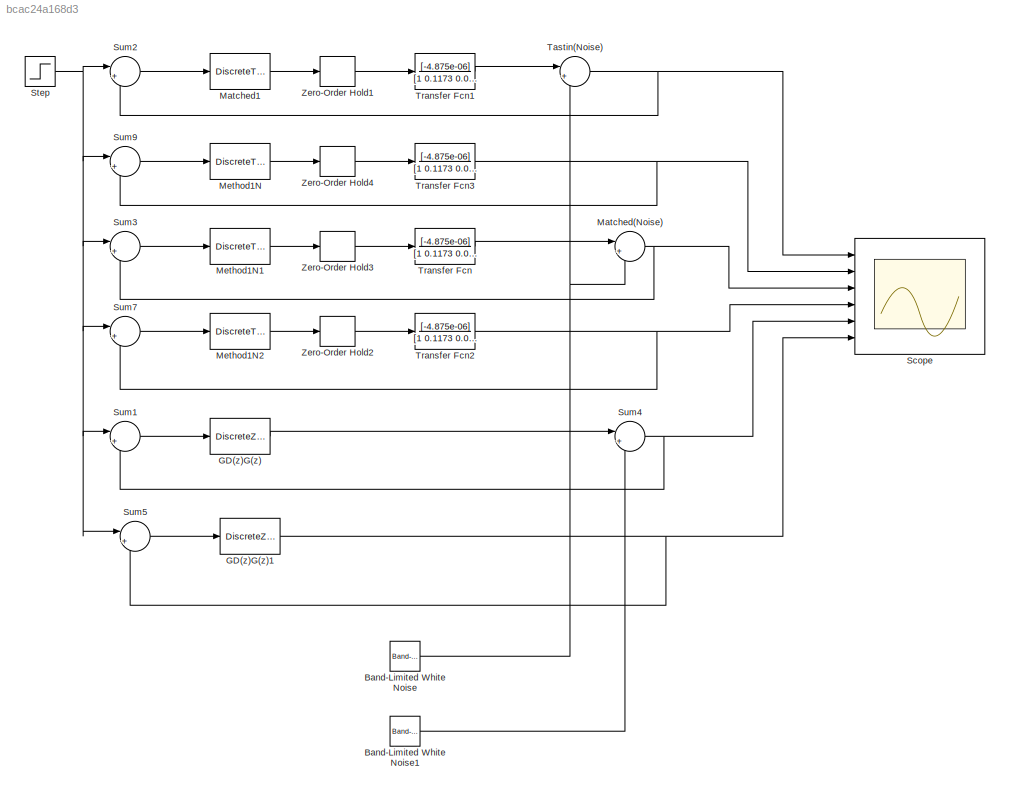
MODEL slx_bcac24a168d3
KIND model
CONFIG AbsTol = auto
CONFIG EnableMultiTasking = off
CONFIG FixedStep = auto
CONFIG MaxStep = auto
CONFIG MinStep = auto
CONFIG RelTol = 1e-3
CONFIG SampleTimeConstraint = Unconstrained
CONFIG Solver = VariableStepAuto
CONFIG SolverName = VariableStepAuto
CONFIG StartTime = 0.0
CONFIG StopTime = 1000
BLOCK [Reference] Band-Limited White Noise  REF=simulink/Sources/Band-Limited
White Noise
  Ports = [0, 1]
  SourceBlock = simulink/Sources/Band-Limited\nWhite Noise
  SourceProductBaseCode = SL
  SourceProductName = Simulink
  SourceType = Band-Limited White Noise.
BLOCK [Reference] Band-Limited White Noise1  REF=simulink/Sources/Band-Limited
White Noise
  Ports = [0, 1]
  SourceBlock = simulink/Sources/Band-Limited\nWhite Noise
  SourceProductBaseCode = SL
  SourceProductName = Simulink
  SourceType = Band-Limited White Noise.
BLOCK [DiscreteZeroPole] GD(z)G(z)
  Gain = 0.0197
  Poles = [0.7788 0.4920 0.3972]
  SampleTime = 10
  Zeros = [-2.8306 -0.1967]
BLOCK [DiscreteZeroPole] GD(z)G(z)1
  Gain = 0.0197
  Poles = [0.7788 0.4920 0.3972]
  SampleTime = 10
  Zeros = [-2.8306 -0.1967]
BLOCK [Sum] Matched(Noise)
  IconShape = round
  InputSameDT = off
  Inputs = |++
  OutDataTypeStr = Inherit: Inherit via internal rule
  Ports = [2, 1]
  SaturateOnIntegerOverflow = off
BLOCK [DiscreteTransferFcn] Matched1
  Denominator = [1 -1]
  InputPortMap = u0
  Numerator = [-7.834 7.826]
  Ports = [1, 1]
  SampleTime = 4
BLOCK [DiscreteTransferFcn] Method1N
  Denominator = [1 -1]
  InputPortMap = u0
  Numerator = [-7.834 7.826]
  Ports = [1, 1]
  SampleTime = 4
BLOCK [DiscreteTransferFcn] Method1N1
  Denominator = [1 -1]
  InputPortMap = u0
  Numerator = [-7.834 7.826]
  Ports = [1, 1]
  SampleTime = 4
BLOCK [DiscreteTransferFcn] Method1N2
  Denominator = [1 -1]
  InputPortMap = u0
  Numerator = [-7.834 7.826]
  Ports = [1, 1]
  SampleTime = 4
BLOCK [Scope] Scope
  NumInputPorts = 6
  Ports = [6]
  ScopeSpecificationString = Simulink.scopes.TimeScopeBlockCfg('CurrentConfiguration', extmgr.ConfigurationSet(extmgr.Configuration('Core','General UI',true),extmgr.Configuration('Core','Source UI',true),extmgr.Configuration('Sources','WiredSimulink',true),extmgr.Configuration('Visuals','Time Domain',true,'SerializedDisplays',{struct('MinYLimReal','-0.20429','MaxYLimReal','1.41266','YLabelReal','','MinYLimMag','0.00000','MaxY...<+1695ch>
BLOCK [Step] Step
  SampleTime = 0
BLOCK [Sum] Sum1
  IconShape = round
  InputSameDT = off
  Inputs = |+-
  OutDataTypeStr = Inherit: Inherit via internal rule
  Ports = [2, 1]
  SaturateOnIntegerOverflow = off
BLOCK [Sum] Sum2
  IconShape = round
  InputSameDT = off
  Inputs = |+-
  OutDataTypeStr = Inherit: Inherit via internal rule
  Ports = [2, 1]
  SaturateOnIntegerOverflow = off
BLOCK [Sum] Sum3
  IconShape = round
  InputSameDT = off
  Inputs = |+-
  OutDataTypeStr = Inherit: Inherit via internal rule
  Ports = [2, 1]
  SaturateOnIntegerOverflow = off
BLOCK [Sum] Sum4
  IconShape = round
  InputSameDT = off
  Inputs = |++
  OutDataTypeStr = Inherit: Inherit via internal rule
  Ports = [2, 1]
  SaturateOnIntegerOverflow = off
BLOCK [Sum] Sum5
  IconShape = round
  InputSameDT = off
  Inputs = |+-
  OutDataTypeStr = Inherit: Inherit via internal rule
  Ports = [2, 1]
  SaturateOnIntegerOverflow = off
BLOCK [Sum] Sum7
  IconShape = round
  InputSameDT = off
  Inputs = |+-
  OutDataTypeStr = Inherit: Inherit via internal rule
  Ports = [2, 1]
  SaturateOnIntegerOverflow = off
BLOCK [Sum] Sum9
  IconShape = round
  InputSameDT = off
  Inputs = |+-
  OutDataTypeStr = Inherit: Inherit via internal rule
  Ports = [2, 1]
  SaturateOnIntegerOverflow = off
BLOCK [Sum] Tastin(Noise)
  IconShape = round
  InputSameDT = off
  Inputs = |++
  OutDataTypeStr = Inherit: Inherit via internal rule
  Ports = [2, 1]
  SaturateOnIntegerOverflow = off
BLOCK [TransferFcn] Transfer Fcn
  Denominator = [1 0.1173 0.002308 0]
  Numerator = [-4.875e-06]
BLOCK [TransferFcn] Transfer Fcn1
  Denominator = [1 0.1173 0.002308 0]
  Numerator = [-4.875e-06]
BLOCK [TransferFcn] Transfer Fcn2
  Denominator = [1 0.1173 0.002308 0]
  Numerator = [-4.875e-06]
BLOCK [TransferFcn] Transfer Fcn3
  Denominator = [1 0.1173 0.002308 0]
  Numerator = [-4.875e-06]
BLOCK [ZeroOrderHold] Zero-Order Hold1
  SampleTime = 4
BLOCK [ZeroOrderHold] Zero-Order Hold2
  SampleTime = 4
BLOCK [ZeroOrderHold] Zero-Order Hold3
  SampleTime = 4
BLOCK [ZeroOrderHold] Zero-Order Hold4
  SampleTime = 4
LINE Band-Limited White Noise1:1 -> Sum4:2
NET Band-Limited White Noise:1 -> Matched(Noise):2, Tastin(Noise):2
NET GD(z)G(z)1:1 -> Scope:6, Sum5:2
LINE GD(z)G(z):1 -> Sum4:1
NET Matched(Noise):1 -> Scope:3, Sum3:2
LINE Matched1:1 -> Zero-Order Hold1:1
LINE Method1N1:1 -> Zero-Order Hold3:1
LINE Method1N2:1 -> Zero-Order Hold2:1
LINE Method1N:1 -> Zero-Order Hold4:1
NET Step:1 -> Sum1:1, Sum2:1, Sum3:1, Sum5:1, Sum7:1, Sum9:1
LINE Sum1:1 -> GD(z)G(z):1
LINE Sum2:1 -> Matched1:1
LINE Sum3:1 -> Method1N1:1
NET Sum4:1 -> Scope:5, Sum1:2
LINE Sum5:1 -> GD(z)G(z)1:1
LINE Sum7:1 -> Method1N2:1
LINE Sum9:1 -> Method1N:1
NET Tastin(Noise):1 -> Scope:1, Sum2:2
LINE Transfer Fcn1:1 -> Tastin(Noise):1
NET Transfer Fcn2:1 -> Scope:4, Sum7:2
NET Transfer Fcn3:1 -> Scope:2, Sum9:2
LINE Transfer Fcn:1 -> Matched(Noise):1
LINE Zero-Order Hold1:1 -> Transfer Fcn1:1
LINE Zero-Order Hold2:1 -> Transfer Fcn2:1
LINE Zero-Order Hold3:1 -> Transfer Fcn:1
LINE Zero-Order Hold4:1 -> Transfer Fcn3:1
note: NET lines group one-source signal fan-out (src -> all destinations, sorted); 1:1 wires keep LINE
